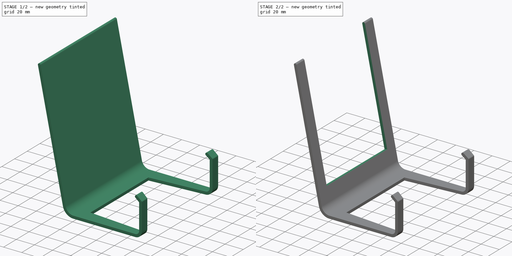
[diagram: build sequence overview — one tinted view per stage of 2, left to right]
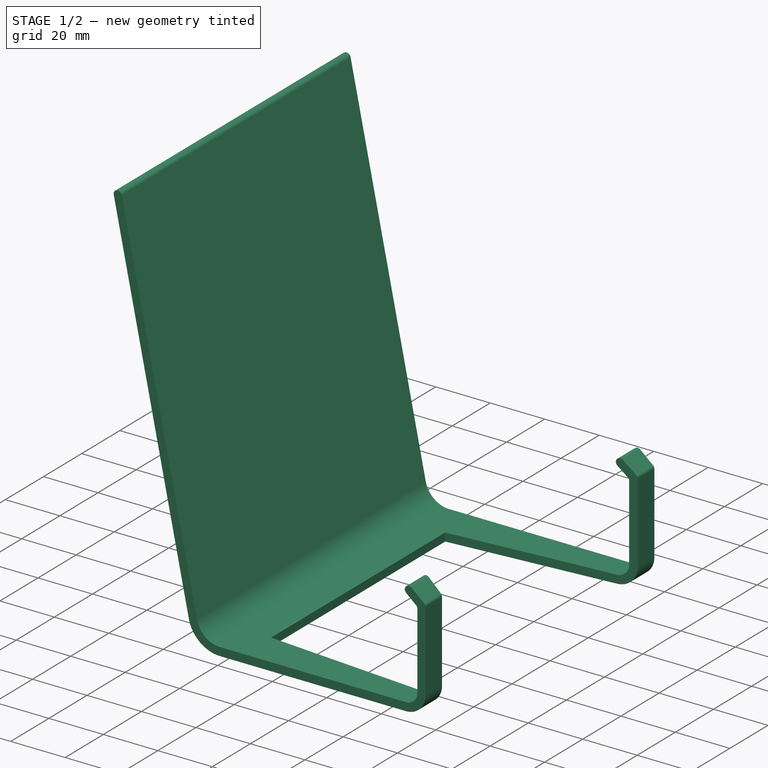
[diagram: stage 1 of 2 — iso view after this stage's code; geometry added in this stage tinted green]
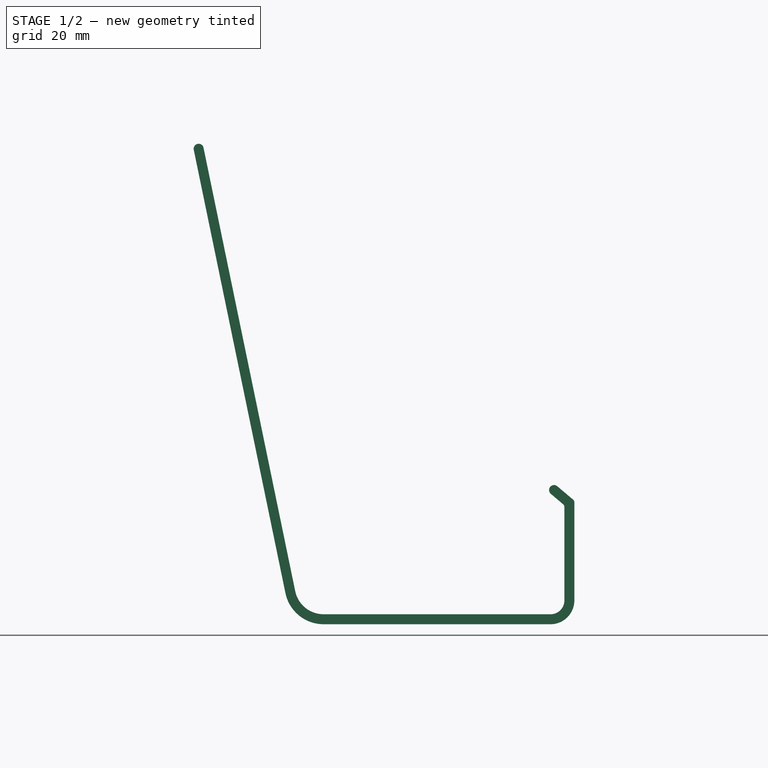
[diagram: stage 1 of 2 — front view after this stage's code; geometry added in this stage tinted green]
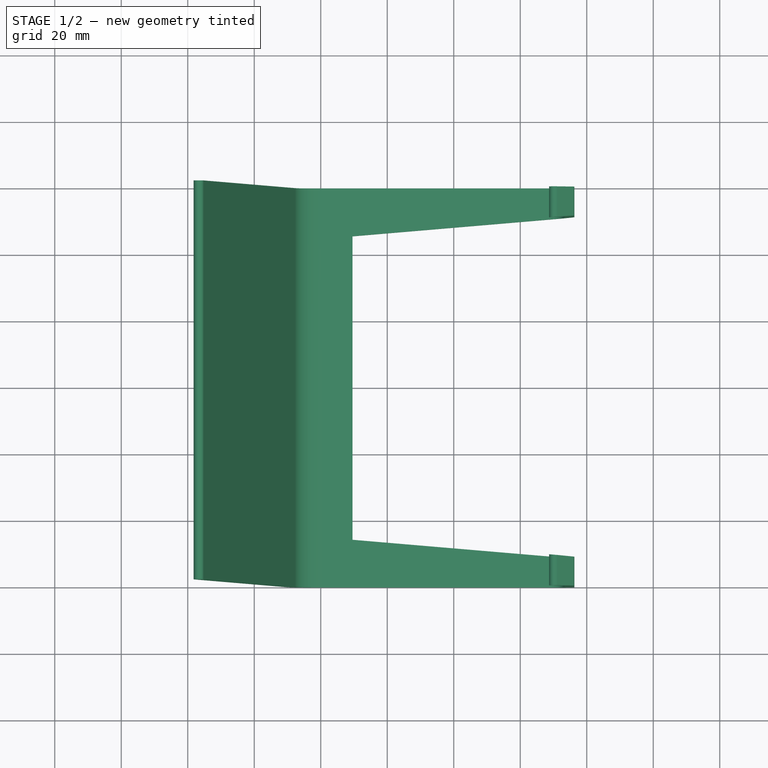
[diagram: stage 1 of 2 — top view after this stage's code; geometry added in this stage tinted green]
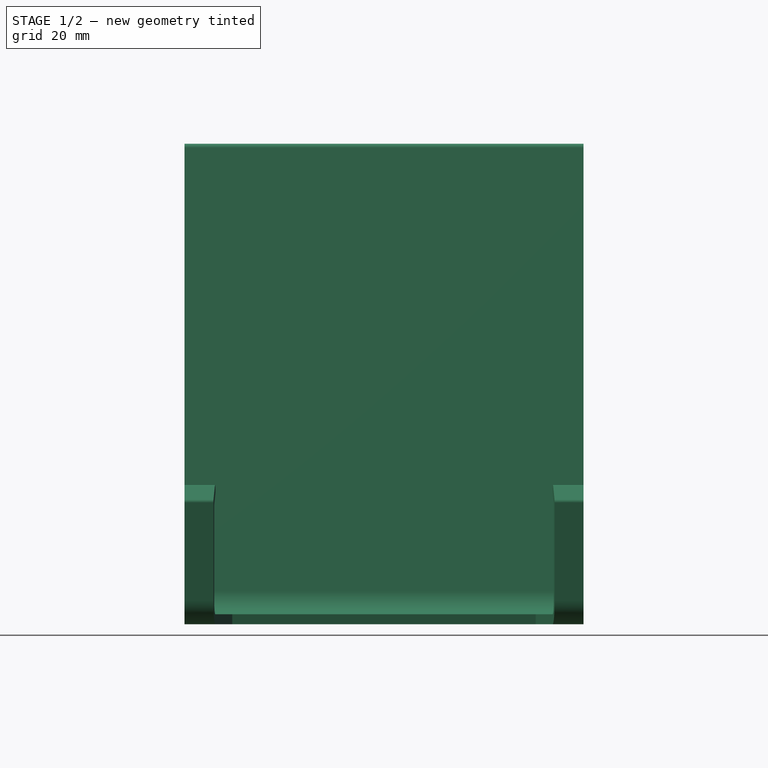
[diagram: stage 1 of 2 — right view after this stage's code; geometry added in this stage tinted green]
FCSTD DOCUMENT  (FreeCAD 0.20R27319 (Git))
Label: Plate Stand deep 1 piece
License: All rights reserved
LicenseURL: http://en.wikipedia.org/wiki/All_rights_reserved
objects: Sketcher::SketchObject×3, PartDesign::Pocket×2, PartDesign::Pad×1, PartDesign::Body×1
note: 10 computed .brp shape members not serialized (recipe doc carries the construction recipe); baked Part::Feature solids carry a one-line shape summary decoded from their .brp

FEATURE [Sketcher::SketchObject] Sketch
  FullyConstrained = false
  MapMode = 5
  Placement = pos=(0,0,0) rot=(1,0,0;1.5708rad)
  Support = -> [XZ_Plane]
  expr: Constraints[19] = 3 / 2
  expr: Constraints[40] = 3 / 2
  sketch-geometry (21):
    g0: LineSegment StartX=-75.2512 StartY=140.304 StartZ=0 EndX=-47.669 EndY=6.94516 EndZ=0
    g1: LineSegment StartX=-39.1405 StartY=0 StartZ=0 EndX=29.129 EndY=0 EndZ=0
    g2: LineSegment StartX=33.2799 StartY=4.15094 StartZ=0 EndX=33.2799 EndY=32.2373 EndZ=0
    g3: LineSegment StartX=36.2799 StartY=33.5807 StartZ=0 EndX=36.2799 EndY=4.15094 EndZ=0
    g4: LineSegment StartX=29.129 StartY=-3 StartZ=0 EndX=-39.1405 EndY=-3 EndZ=0
    g5: LineSegment StartX=-50.6069 StartY=6.33754 StartZ=0 EndX=-78.189 EndY=139.696 EndZ=0
    g6: ArcOfCircle CenterX=-76.7201 CenterY=140 CenterZ=0 NormalX=0 NormalY=0 NormalZ=1 AngleXU=0 Radius=1.5 StartAngle=0.203951 EndAngle=3.34554
    g7: ArcOfCircle CenterX=29.129 CenterY=4.15094 CenterZ=0 NormalX=0 NormalY=0 NormalZ=1 AngleXU=0 Radius=4.15094 StartAngle=4.71239 EndAngle=6.28319
    g8: ArcOfCircle CenterX=29.129 CenterY=4.15094 CenterZ=0 NormalX=0 NormalY=0 NormalZ=1 AngleXU=0 Radius=7.15094 StartAngle=4.71239 EndAngle=6.28319
    g9: ArcOfCircle CenterX=-39.1405 CenterY=8.7091 CenterZ=0 NormalX=0 NormalY=0 NormalZ=1 AngleXU=0 Radius=11.7091 StartAngle=3.34554 EndAngle=4.71239
    g10: GeomPoint X=-48.6756 Y=-3 Z=0
    g11: ArcOfCircle CenterX=-39.1405 CenterY=8.7091 CenterZ=0 NormalX=0 NormalY=0 NormalZ=1 AngleXU=0 Radius=8.7091 StartAngle=3.34554 EndAngle=4.71239
    g12: GeomPoint X=-46.2326 Y=0 Z=0
    g13: LineSegment StartX=0 StartY=0 StartZ=0 EndX=0 EndY=-3 EndZ=0
    g14: LineSegment StartX=32.8801 StartY=33.1005 StartZ=0 EndX=29.2068 EndY=36.2155 EndZ=0
    g15: LineSegment StartX=31.1471 StartY=38.5036 StartZ=0 EndX=35.845 EndY=34.5197 EndZ=0
    g16: ArcOfCircle CenterX=35.0487 CenterY=33.5807 CenterZ=0 NormalX=0 NormalY=0 NormalZ=1 AngleXU=0 Radius=1.23116 StartAngle=-1.8e-15 EndAngle=0.86746
    g17: GeomPoint X=36.2799 Y=34.1509 Z=0
    g18: ArcOfCircle CenterX=32.1481 CenterY=32.2373 CenterZ=0 NormalX=0 NormalY=0 NormalZ=1 AngleXU=0 Radius=1.13184 StartAngle=1.8e-15 EndAngle=0.86746
    g19: GeomPoint X=33.2799 Y=32.7615 Z=0
    g20: ArcOfCircle CenterX=30.177 CenterY=37.3596 CenterZ=0 NormalX=0 NormalY=0 NormalZ=1 AngleXU=0 Radius=1.5 StartAngle=0.86746 EndAngle=4.00905
  constraints (41):
    c: PointOnObject(g12,g-1)
    c: Vertical(g2)
    c: Vertical(g3)
    c: Horizontal(g4)
    c: Tangent(g5,g6) = 1.5708
    c: Tangent(g1,g7) = -1.5708
    c: Tangent(g2,g7) = -1.5708
    c: Tangent(g3,g8) = 1.5708
    c: Tangent(g4,g8) = 1.5708
    c: PointOnObject(g10,g4)
    c: PointOnObject(g10,g5)
    c: Tangent(g4,g9) = 1.5708
    c: Tangent(g5,g9) = 1.5708
    c: PointOnObject(g12,g0)
    c: PointOnObject(g12,g1)
    c: Tangent(g0,g11) = -1.5708
    c: Tangent(g1,g11) = -1.5708
    c: Parallel(g0,g5)
    c: Tangent(g6,g0) = 1.5708
    c: Radius(g6) = 1.5
    c: Coincident(g13,g-1)
    c: PointOnObject(g13,g4)
    c: Vertical(g13)
    c: DistanceY(g-1,g6) = 140
    c: DistanceX(g6,g2) = 110
    c: Coincident(g9,g11)
    c: Coincident(g7,g8)
    c: Horizontal(g1)
    c: Distance(g3,g17) = 30
    c: Parallel(g15,g14)
    c: PointOnObject(g17,g3)
    c: PointOnObject(g17,g15)
    c: Tangent(g3,g16) = 1.5708
    c: Tangent(g15,g16) = 1.5708
    c: PointOnObject(g19,g2)
    c: PointOnObject(g19,g14)
    c: Tangent(g2,g18) = -1.5708
    c: Tangent(g14,g18) = -1.5708
    c: Tangent(g20,g15) = 1.5708
    c: Tangent(g20,g14) = 1.5708
    c: Radius(g20) = 1.5
FEATURE [PartDesign::Pad] Pad
  Direction = (0,-1,2e-16)
  Length = 120
  Length2 = 10
  Midplane = true
  Placement = pos=(0,0,0) rot=(1,0,0;1.5708rad)
  Profile = -> Sketch
  ReferenceAxis = -> Sketch [N_Axis]
  Type = 0
FEATURE [Sketcher::SketchObject] Sketch001
  AttachmentOffset = pos=(0,0,-5) rot=(0,0,1;0rad)
  FullyConstrained = false
  MapMode = 5
  Placement = pos=(0,0,-5) rot=(0,0,1;0rad)
  Support = -> [XY_Plane]
  sketch-geometry (4):
    g0: LineSegment StartX=-30.4542 StartY=45.6455 StartZ=0 EndX=-30.4542 EndY=-45.6455 EndZ=0
    g1: LineSegment StartX=-30.4542 StartY=-45.6455 StartZ=0 EndX=48.2851 EndY=-52.3409 EndZ=0
    g2: LineSegment StartX=48.2851 StartY=-52.3409 StartZ=0 EndX=48.2851 EndY=52.3409 EndZ=0
    g3: LineSegment StartX=48.2851 StartY=52.3409 StartZ=0 EndX=-30.4542 EndY=45.6455 EndZ=0
  constraints (6):
    c: Coincident(g0,g1)
    c: Coincident(g1,g2)
    c: Coincident(g2,g3)
    c: Coincident(g3,g0)
    c: Symmetric(g2,g1,g-1)
    c: Symmetric(g0,g0,g-1)
FEATURE [PartDesign::Pocket] Pocket
  BaseFeature = -> Pad
  Direction = (0,0,-1)
  Length = 5
  Length2 = 5
  Placement = pos=(0,0,0) rot=(1,0,0;1.5708rad)
  Profile = -> Sketch001
  ReferenceAxis = -> Sketch001 [N_Axis]
  Reversed = true
  Type = 1
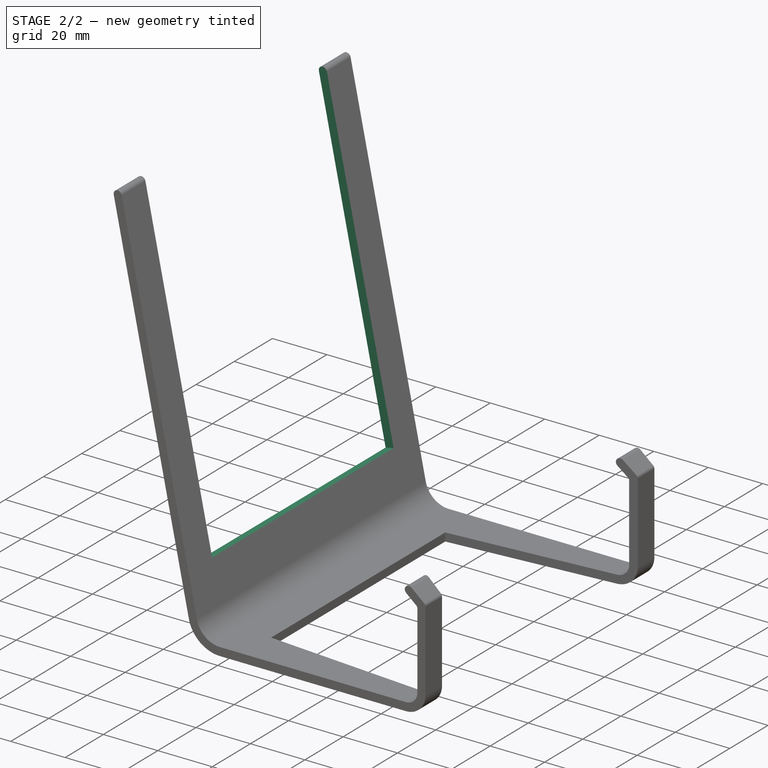
[diagram: stage 2 of 2 — iso view after this stage's code; geometry added in this stage tinted green]
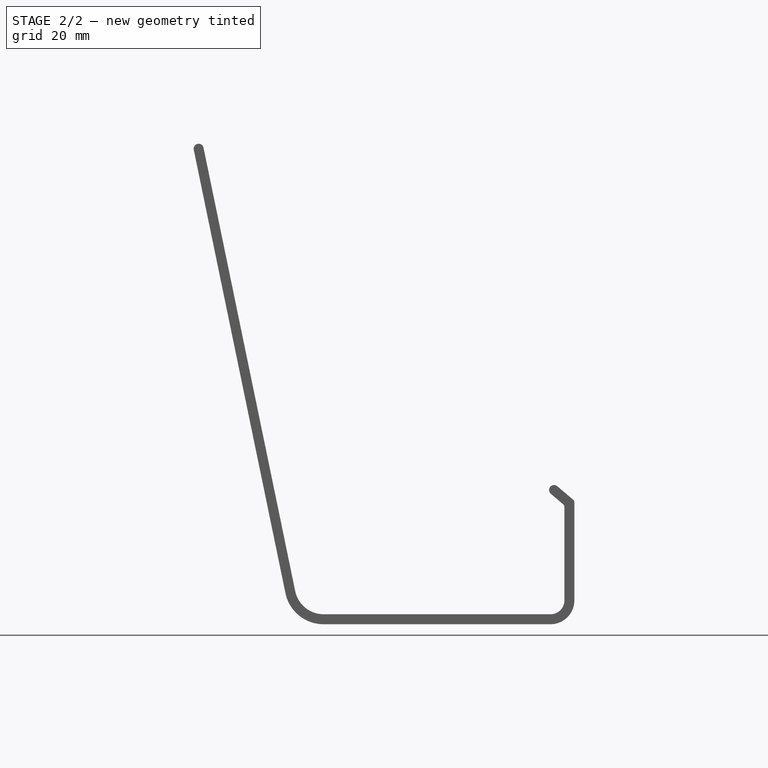
[diagram: stage 2 of 2 — front view after this stage's code; geometry added in this stage tinted green]
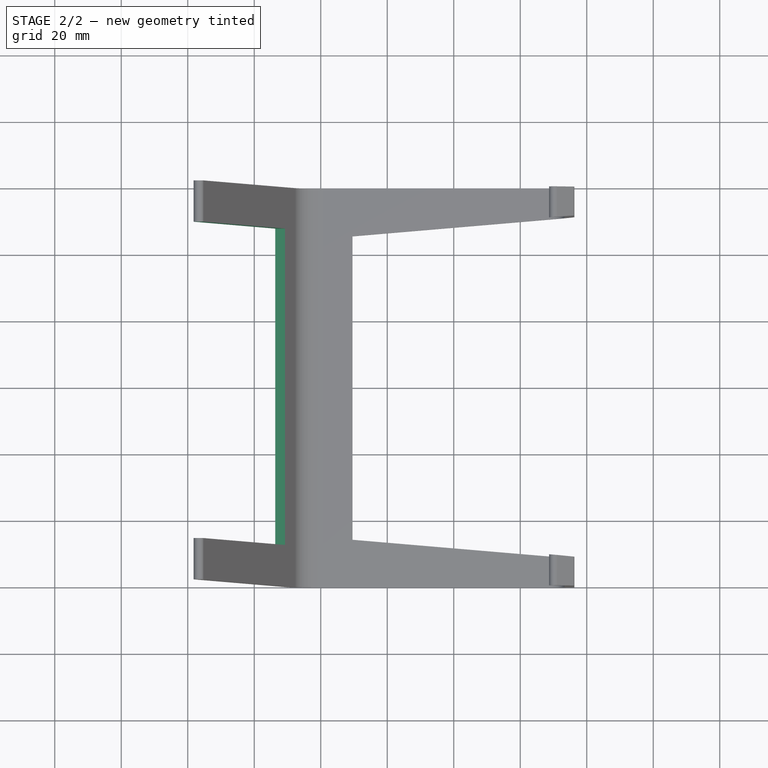
[diagram: stage 2 of 2 — top view after this stage's code; geometry added in this stage tinted green]
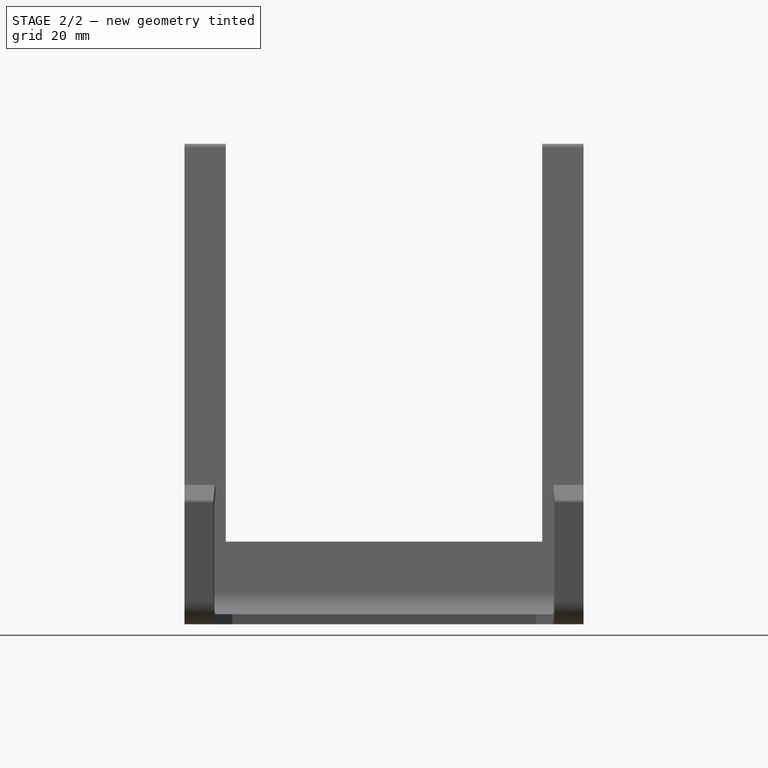
[diagram: stage 2 of 2 — right view after this stage's code; geometry added in this stage tinted green]
FEATURE [Sketcher::SketchObject] Sketch002
  FullyConstrained = false
  MapMode = 5
  Placement = pos=(-44.336,-1.02e-14,-9.16988) rot=(0.631451,0,0.775416;3.14159rad)
  Support = -> [Pocket]
  sketch-geometry (4):
    g0: LineSegment StartX=31.6747 StartY=47.5796 StartZ=0 EndX=163.966 EndY=47.5796 EndZ=0
    g1: LineSegment StartX=163.966 StartY=-47.5796 StartZ=0 EndX=31.6747 EndY=-47.5796 EndZ=0
    g2: LineSegment StartX=31.6747 StartY=-47.5796 StartZ=0 EndX=31.6747 EndY=47.5796 EndZ=0
    g3: LineSegment StartX=163.966 StartY=47.5796 StartZ=0 EndX=163.966 EndY=-47.5796 EndZ=0
  constraints (8):
    c: Horizontal(g0)
    c: Horizontal(g1)
    c: Coincident(g1,g2)
    c: Coincident(g2,g0)
    c: Symmetric(g0,g1,g-1)
    c: Coincident(g3,g0)
    c: Coincident(g3,g1)
    c: Vertical(g3)
FEATURE [PartDesign::Pocket] Pocket001
  BaseFeature = -> Pocket
  Direction = (-0.979274,-2e-16,-0.20254)
  Length = 5
  Length2 = 5
  Placement = pos=(0,0,0) rot=(1,0,0;1.5708rad)
  Profile = -> Sketch002
  ReferenceAxis = -> Sketch002 [N_Axis]
  Type = 0
FEATURE [PartDesign::Body] Body
  Group = -> [Sketch,Pad,Sketch001,Pocket,Sketch002,Pocket001]
  Origin = -> Origin
  Tip = -> Pocket001
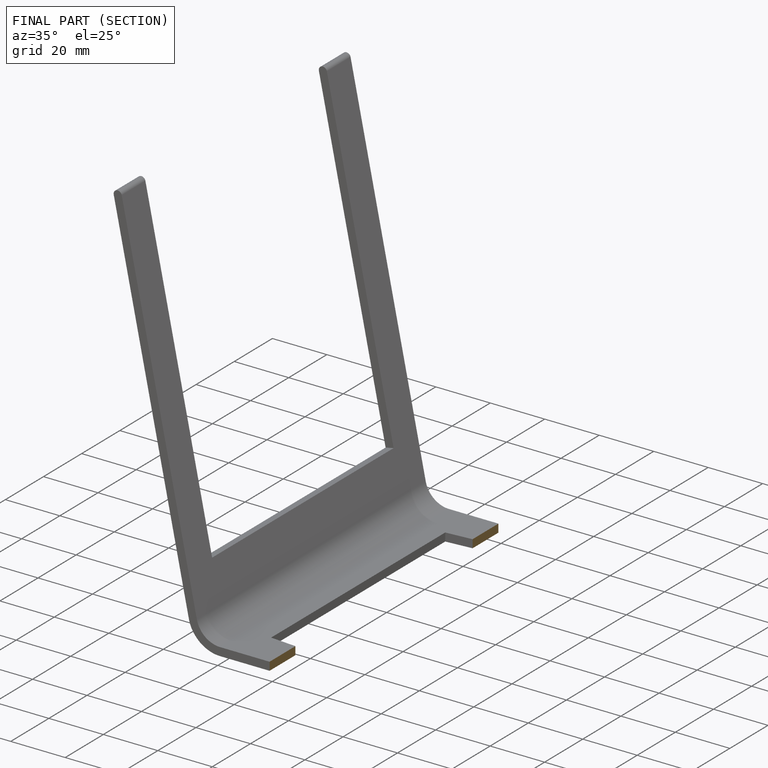
[diagram: finished part — half-section view (interior)]
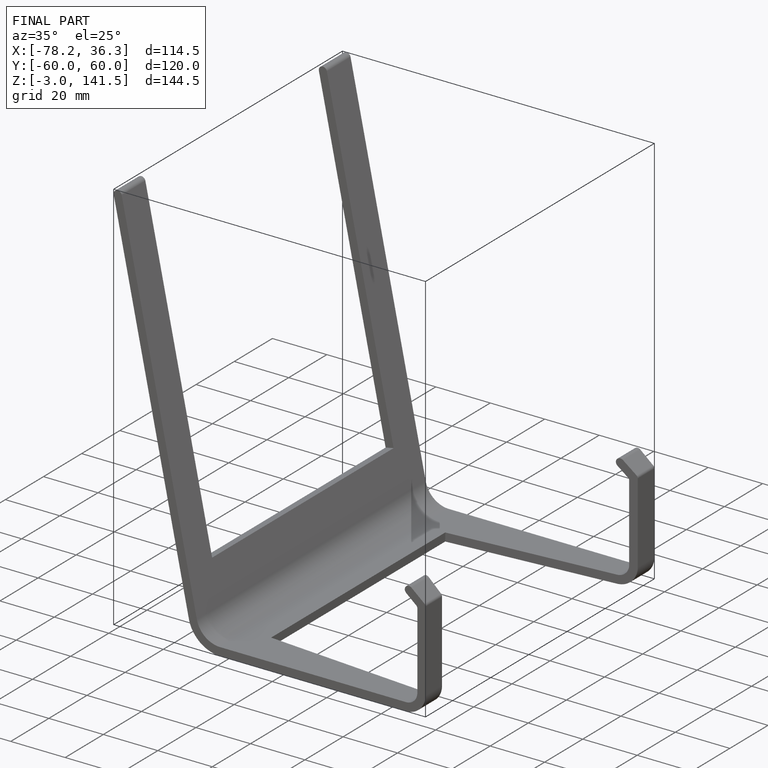
[diagram: finished part — iso view with bounding-box wireframe]
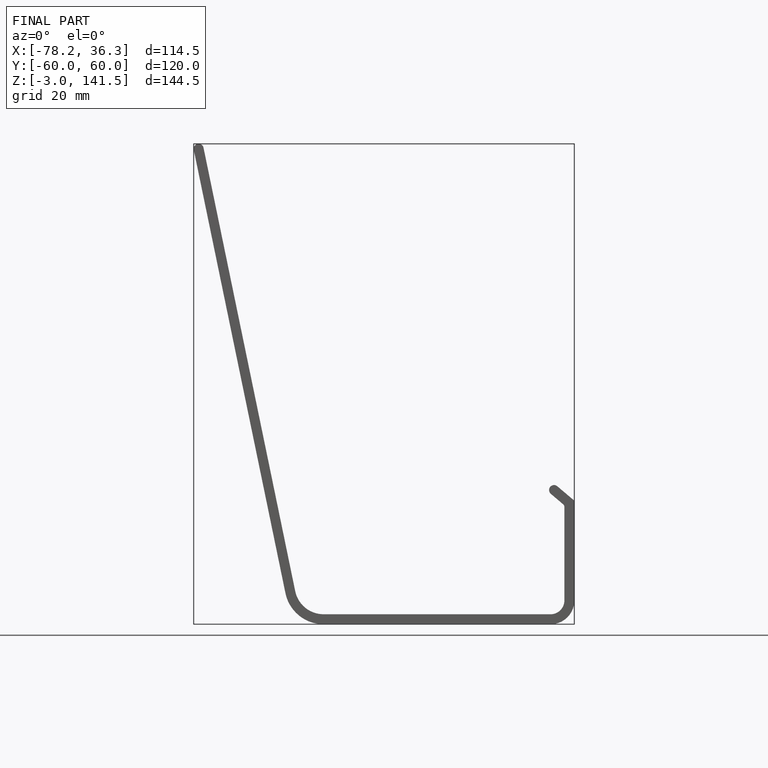
[diagram: finished part — front view with bounding-box wireframe]
